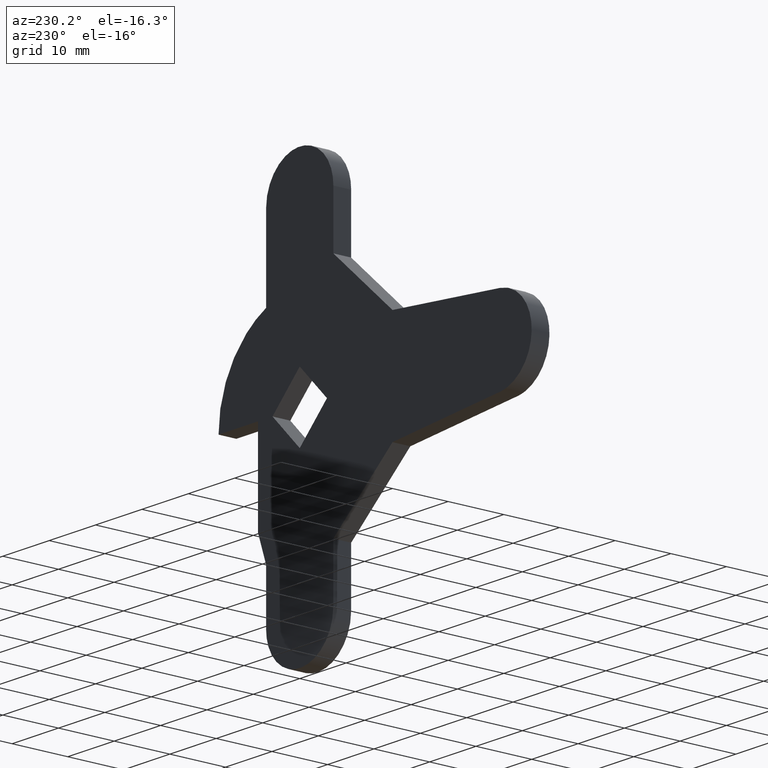
[diagram: clean part render]
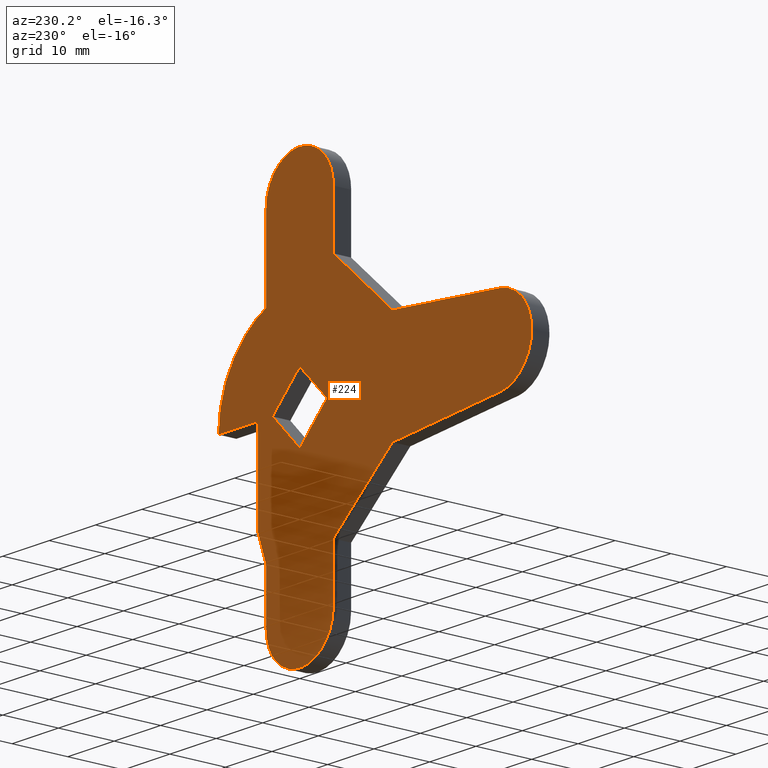
[diagram: same view with one face highlighted and labeled with its STEP entity id]
A machine part, auxiliary view. The second image highlights one B-rep face of the part: STEP entity #224.
In plain terms, the highlighted face is a freeform B-spline surface patch.
Its self-contained STEP definition (entity closure, byte-faithful):
#44=CARTESIAN_POINT('',(-53.371669325223678,0.0,41.246249854635423));
#45=CARTESIAN_POINT('',(20.871628794602639,0.0,41.246249854635423));
#46=CARTESIAN_POINT('',(-53.371669325223678,0.0,-41.246251866292177));
#47=CARTESIAN_POINT('',(20.871628794602639,0.0,-41.246251866292177));
#48=B_SPLINE_SURFACE_WITH_KNOTS('',1,1,((#44,#46),(#45,#47)),.UNSPECIFIED.,.F.,.F.,.U.,(2,2),(2,2),(0.0,74.243298119826321),(0.0,82.492501720927606),.UNSPECIFIED.);
#49=CARTESIAN_POINT('',(-7.250000000000000,0.0,20.500000000000000));
#50=VERTEX_POINT('',#49);
#51=CARTESIAN_POINT('',(-20.0,0.0,9.499999999999801));
#52=VERTEX_POINT('',#51);
#53=CARTESIAN_POINT('',(-7.250000000000000,0.0,20.500000000000000));
#54=CARTESIAN_POINT('',(-20.0,0.0,9.499999999999801));
#55=QUASI_UNIFORM_CURVE('',1,(#53,#54),.UNSPECIFIED.,.F.,.U.);
#56=EDGE_CURVE('',#50,#52,#55,.T.);
#57=ORIENTED_EDGE('',*,*,#56,.F.);
#58=CARTESIAN_POINT('',(-7.250000000000000,0.0,30.250000000000000));
#59=VERTEX_POINT('',#58);
#60=CARTESIAN_POINT('',(-7.250000000000000,0.0,30.250000000000000));
#61=CARTESIAN_POINT('',(-7.250000000000000,0.0,20.500000000000000));
#62=QUASI_UNIFORM_CURVE('',1,(#60,#61),.UNSPECIFIED.,.F.,.U.);
#63=EDGE_CURVE('',#59,#50,#62,.T.);
#64=ORIENTED_EDGE('',*,*,#63,.F.);
#65=CARTESIAN_POINT('',(7.249999999999901,0.0,30.250000000000000));
#66=VERTEX_POINT('',#65);
#67=CARTESIAN_POINT('',(7.249999999999901,0.0,30.250000000000000));
#68=CARTESIAN_POINT('',(7.250000000000000,0.0,37.499999999999993));
#69=CARTESIAN_POINT('',(0.0,0.0,37.500000000000000));
#70=CARTESIAN_POINT('',(-7.250000000000000,0.0,37.499999999999993));
#71=CARTESIAN_POINT('',(-7.250000000000000,0.0,30.250000000000000));
#79=(BOUNDED_CURVE()B_SPLINE_CURVE(2,(#67,#68,#69,#70,#71),.UNSPECIFIED.,.F.,.U.)B_SPLINE_CURVE_WITH_KNOTS((3,2,3),(0.0,0.500000000000000,1.0),.UNSPECIFIED.)CURVE()GEOMETRIC_REPRESENTATION_ITEM()RATIONAL_B_SPLINE_CURVE((1.0,0.707106781186548,1.0,0.707106781186548,1.0))REPRESENTATION_ITEM(''));
#80=EDGE_CURVE('',#66,#59,#79,.T.);
#81=ORIENTED_EDGE('',*,*,#80,.F.);
#82=CARTESIAN_POINT('',(7.249999999999901,0.0,15.927570436196500));
#83=VERTEX_POINT('',#82);
#84=CARTESIAN_POINT('',(7.249999999999901,0.0,15.927570436196500));
#85=CARTESIAN_POINT('',(7.249999999999901,0.0,30.250000000000000));
#86=QUASI_UNIFORM_CURVE('',1,(#84,#85),.UNSPECIFIED.,.F.,.U.);
#87=EDGE_CURVE('',#83,#66,#86,.T.);
#88=ORIENTED_EDGE('',*,*,#87,.F.);
#89=CARTESIAN_POINT('',(17.500000000000000,0.0,0.0));
#90=VERTEX_POINT('',#89);
#91=CARTESIAN_POINT('',(17.500000000000000,0.0,0.0));
#92=CARTESIAN_POINT('',(17.500000000000000,0.0,11.261918490240001));
#93=CARTESIAN_POINT('',(7.249999999999916,0.0,15.927570436196520));
#101=(BOUNDED_CURVE()B_SPLINE_CURVE(2,(#91,#92,#93),.UNSPECIFIED.,.F.,.U.)CURVE()GEOMETRIC_REPRESENTATION_ITEM()QUASI_UNIFORM_CURVE()RATIONAL_B_SPLINE_CURVE((1.0,0.840917865872081,1.0))REPRESENTATION_ITEM(''));
#102=EDGE_CURVE('',#90,#83,#101,.T.);
#103=ORIENTED_EDGE('',*,*,#102,.F.);
#104=CARTESIAN_POINT('',(9.0,0.0,0.0));
#105=VERTEX_POINT('',#104);
#106=CARTESIAN_POINT('',(9.0,0.0,0.0));
#107=CARTESIAN_POINT('',(17.500000000000000,0.0,0.0));
#108=QUASI_UNIFORM_CURVE('',1,(#106,#107),.UNSPECIFIED.,.F.,.U.);
#109=EDGE_CURVE('',#105,#90,#108,.T.);
#110=ORIENTED_EDGE('',*,*,#109,.F.);
#111=CARTESIAN_POINT('',(9.0,0.0,-16.0));
#112=VERTEX_POINT('',#111);
#113=CARTESIAN_POINT('',(9.0,0.0,-16.0));
#114=CARTESIAN_POINT('',(9.0,0.0,0.0));
#115=QUASI_UNIFORM_CURVE('',1,(#113,#114),.UNSPECIFIED.,.F.,.U.);
#116=EDGE_CURVE('',#112,#105,#115,.T.);
#117=ORIENTED_EDGE('',*,*,#116,.F.);
#118=CARTESIAN_POINT('',(7.249999999999901,0.0,-21.0));
#119=VERTEX_POINT('',#118);
#120=CARTESIAN_POINT('',(7.249999999999901,0.0,-21.0));
#121=CARTESIAN_POINT('',(9.0,0.0,-16.0));
#122=QUASI_UNIFORM_CURVE('',1,(#120,#121),.UNSPECIFIED.,.F.,.U.);
#123=EDGE_CURVE('',#119,#112,#122,.T.);
#124=ORIENTED_EDGE('',*,*,#123,.F.);
#125=CARTESIAN_POINT('',(7.250000000000000,0.0,-30.250000000000000));
#126=VERTEX_POINT('',#125);
#127=CARTESIAN_POINT('',(7.250000000000000,0.0,-30.250000000000000));
#128=CARTESIAN_POINT('',(7.249999999999901,0.0,-21.0));
#129=QUASI_UNIFORM_CURVE('',1,(#127,#128),.UNSPECIFIED.,.F.,.U.);
#130=EDGE_CURVE('',#126,#119,#129,.T.);
#131=ORIENTED_EDGE('',*,*,#130,.F.);
#132=CARTESIAN_POINT('',(-7.250000000000000,0.0,-30.250000000000000));
#133=VERTEX_POINT('',#132);
#134=CARTESIAN_POINT('',(-7.250000000000000,0.0,-30.250000000000000));
#135=CARTESIAN_POINT('',(-7.250000000000000,0.0,-37.499999999999993));
#136=CARTESIAN_POINT('',(0.0,0.0,-37.500000000000000));
#137=CARTESIAN_POINT('',(7.250000000000000,0.0,-37.499999999999993));
#138=CARTESIAN_POINT('',(7.250000000000000,0.0,-30.250000000000000));
#146=(BOUNDED_CURVE()B_SPLINE_CURVE(2,(#134,#135,#136,#137,#138),.UNSPECIFIED.,.F.,.U.)B_SPLINE_CURVE_WITH_KNOTS((3,2,3),(0.0,0.500000000000000,1.0),.UNSPECIFIED.)CURVE()GEOMETRIC_REPRESENTATION_ITEM()RATIONAL_B_SPLINE_CURVE((1.0,0.707106781186548,1.0,0.707106781186548,1.0))REPRESENTATION_ITEM(''));
#147=EDGE_CURVE('',#133,#126,#146,.T.);
#148=ORIENTED_EDGE('',*,*,#147,.F.);
#149=CARTESIAN_POINT('',(-7.250000000000000,0.0,-20.500000000000000));
#150=VERTEX_POINT('',#149);
#151=CARTESIAN_POINT('',(-7.250000000000000,0.0,-20.500000000000000));
#152=CARTESIAN_POINT('',(-7.250000000000000,0.0,-30.250000000000000));
#153=QUASI_UNIFORM_CURVE('',1,(#151,#152),.UNSPECIFIED.,.F.,.U.);
#154=EDGE_CURVE('',#150,#133,#153,.T.);
#155=ORIENTED_EDGE('',*,*,#154,.F.);
#156=CARTESIAN_POINT('',(-20.0,0.0,-9.500000000000000));
#157=VERTEX_POINT('',#156);
#158=CARTESIAN_POINT('',(-20.0,0.0,-9.500000000000000));
#159=CARTESIAN_POINT('',(-7.250000000000000,0.0,-20.500000000000000));
#160=QUASI_UNIFORM_CURVE('',1,(#158,#159),.UNSPECIFIED.,.F.,.U.);
#161=EDGE_CURVE('',#157,#150,#160,.T.);
#162=ORIENTED_EDGE('',*,*,#161,.F.);
#163=CARTESIAN_POINT('',(-43.154599674777700,0.0,-7.471400028493091));
#164=VERTEX_POINT('',#163);
#165=CARTESIAN_POINT('',(-43.154599674777700,0.0,-7.471400028493091));
#166=CARTESIAN_POINT('',(-20.0,0.0,-9.500000000000000));
#167=QUASI_UNIFORM_CURVE('',1,(#165,#166),.UNSPECIFIED.,.F.,.U.);
#168=EDGE_CURVE('',#164,#157,#167,.T.);
#169=ORIENTED_EDGE('',*,*,#168,.F.);
#170=CARTESIAN_POINT('',(-43.154600000000002,0.0,7.471399999999900));
#171=VERTEX_POINT('',#170);
#172=CARTESIAN_POINT('',(-43.154600000000002,0.0,7.471399999999907));
#173=CARTESIAN_POINT('',(-50.000041887174163,0.0,6.871663299200882));
#174=CARTESIAN_POINT('',(-50.000041737615973,0.0,-0.000000163234088));
#175=CARTESIAN_POINT('',(-50.000041588057769,0.0,-6.871663625669059));
#176=CARTESIAN_POINT('',(-43.154599674777700,0.0,-7.471400028493090));
#184=(BOUNDED_CURVE()B_SPLINE_CURVE(2,(#172,#173,#174,#175,#176),.UNSPECIFIED.,.F.,.U.)B_SPLINE_CURVE_WITH_KNOTS((3,2,3),(0.0,0.500000000000000,1.0),.UNSPECIFIED.)CURVE()GEOMETRIC_REPRESENTATION_ITEM()RATIONAL_B_SPLINE_CURVE((1.0,0.737318372285746,1.0,0.737318372285746,1.0))REPRESENTATION_ITEM(''));
#185=EDGE_CURVE('',#171,#164,#184,.T.);
#186=ORIENTED_EDGE('',*,*,#185,.F.);
#187=CARTESIAN_POINT('',(-20.0,0.0,9.499999999999801));
#188=CARTESIAN_POINT('',(-43.154600000000002,0.0,7.471399999999900));
#189=QUASI_UNIFORM_CURVE('',1,(#187,#188),.UNSPECIFIED.,.F.,.U.);
#190=EDGE_CURVE('',#52,#171,#189,.T.);
#191=ORIENTED_EDGE('',*,*,#190,.F.);
#192=EDGE_LOOP('',(#57,#64,#81,#88,#103,#110,#117,#124,#131,#148,#155,#162,#169,#186,#191));
#193=FACE_OUTER_BOUND('',#192,.T.);
#194=CARTESIAN_POINT('',(5.868999999999900,0.0,0.0));
#195=VERTEX_POINT('',#194);
#196=CARTESIAN_POINT('',(0.0,0.0,-5.869000000000000));
#197=VERTEX_POINT('',#196);
#198=CARTESIAN_POINT('',(5.868999999999900,0.0,0.0));
#199=CARTESIAN_POINT('',(0.0,0.0,-5.869000000000000));
#200=QUASI_UNIFORM_CURVE('',1,(#198,#199),.UNSPECIFIED.,.F.,.U.);
#201=EDGE_CURVE('',#195,#197,#200,.T.);
#202=ORIENTED_EDGE('',*,*,#201,.F.);
#203=CARTESIAN_POINT('',(0.0,0.0,5.869000000000000));
#204=VERTEX_POINT('',#203);
#205=CARTESIAN_POINT('',(0.0,0.0,5.869000000000000));
#206=CARTESIAN_POINT('',(5.868999999999900,0.0,0.0));
#207=QUASI_UNIFORM_CURVE('',1,(#205,#206),.UNSPECIFIED.,.F.,.U.);
#208=EDGE_CURVE('',#204,#195,#207,.T.);
#209=ORIENTED_EDGE('',*,*,#208,.F.);
#210=CARTESIAN_POINT('',(-5.869000000000000,0.0,0.0));
#211=VERTEX_POINT('',#210);
#212=CARTESIAN_POINT('',(-5.869000000000000,0.0,0.0));
#213=CARTESIAN_POINT('',(0.0,0.0,5.869000000000000));
#214=QUASI_UNIFORM_CURVE('',1,(#212,#213),.UNSPECIFIED.,.F.,.U.);
#215=EDGE_CURVE('',#211,#204,#214,.T.);
#216=ORIENTED_EDGE('',*,*,#215,.F.);
#217=CARTESIAN_POINT('',(0.0,0.0,-5.869000000000000));
#218=CARTESIAN_POINT('',(-5.869000000000000,0.0,0.0));
#219=QUASI_UNIFORM_CURVE('',1,(#217,#218),.UNSPECIFIED.,.F.,.U.);
#220=EDGE_CURVE('',#197,#211,#219,.T.);
#221=ORIENTED_EDGE('',*,*,#220,.F.);
#222=EDGE_LOOP('',(#202,#209,#216,#221));
#223=FACE_BOUND('',#222,.T.);
#224=ADVANCED_FACE('',(#193,#223),#48,.T.);